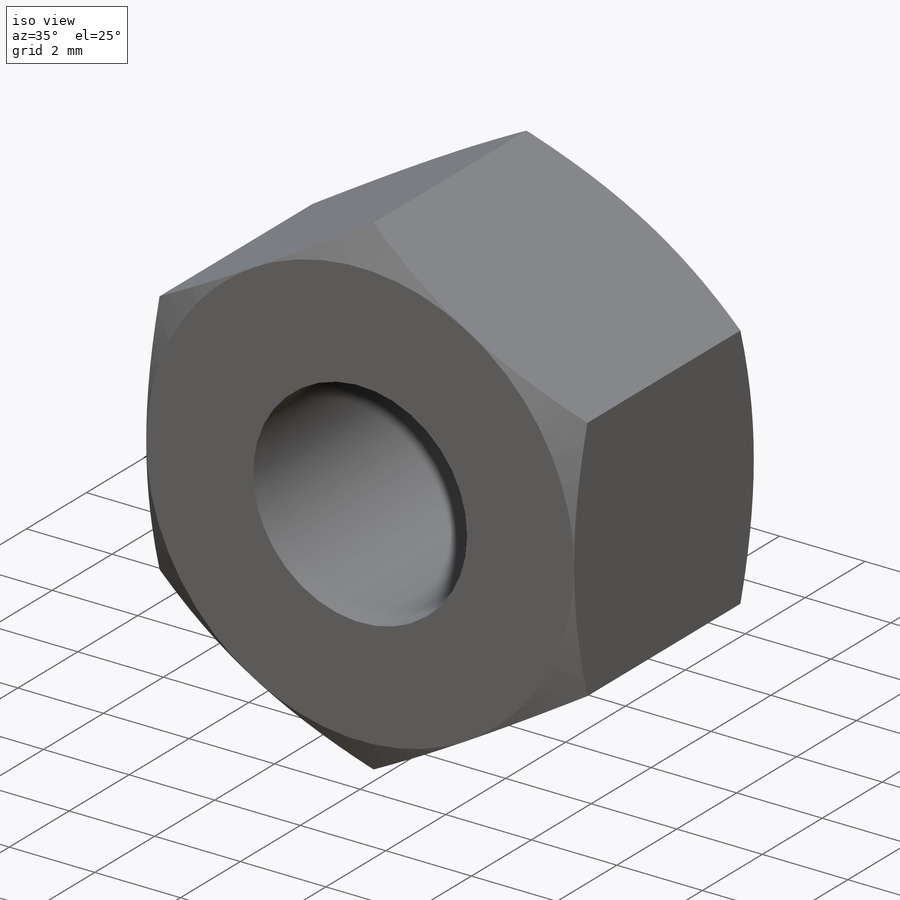
[diagram: iso view]
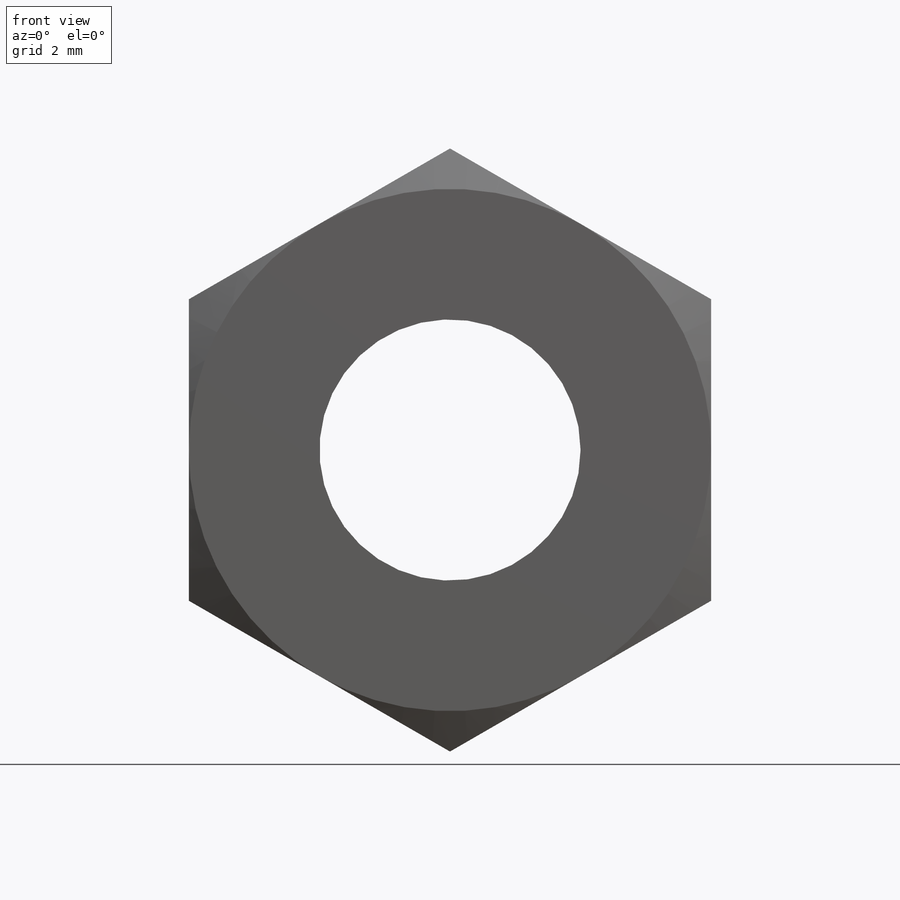
[diagram: front view]
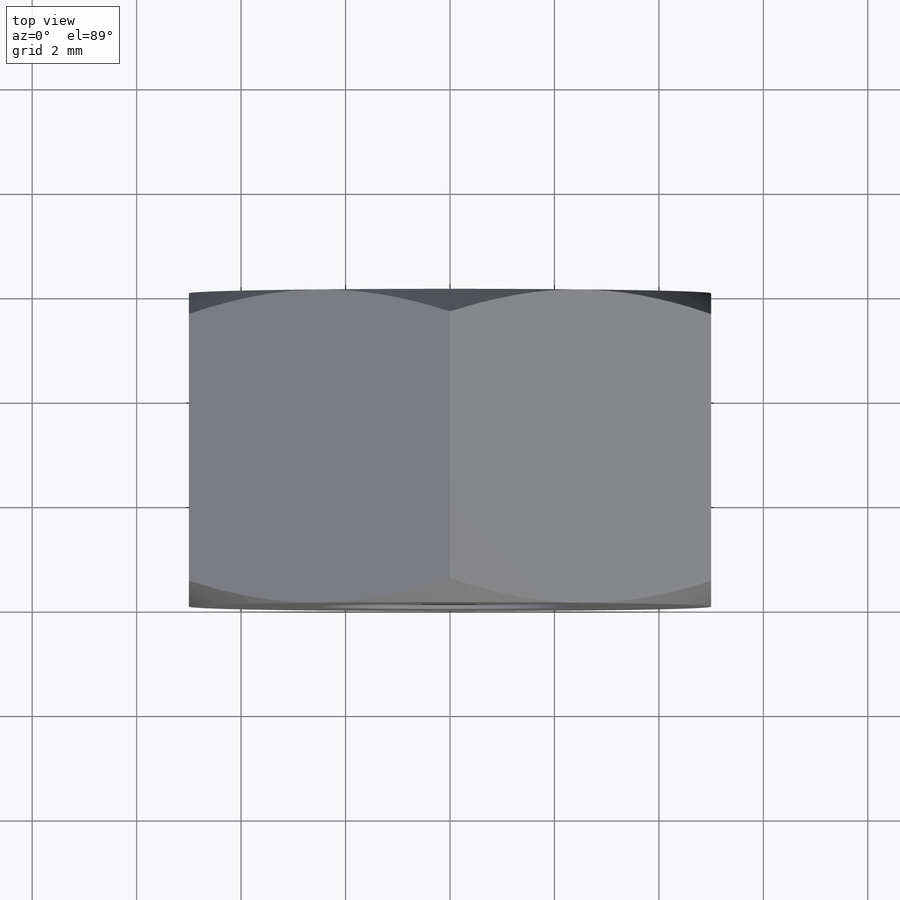
[diagram: top view]
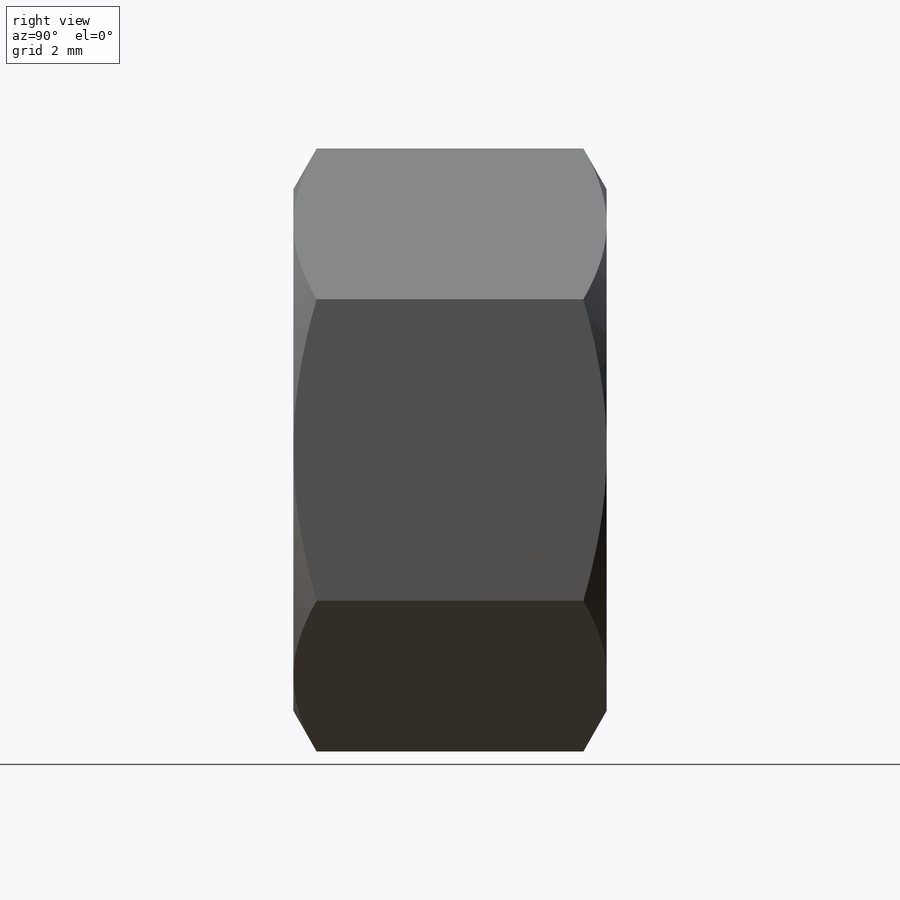
[diagram: right view]
SOLIDWORKS PART (.sldprt)
format: sldprt  version: not decoded by parser v0  size: 163,328 bytes
history: native  units: mm
features: plane x3, sketch x3, material x1, extrude x1, cut_extrude x1, cut_revolve x1 (+8 scaffold rows collapsed)
feature tree (18):
  scaffold x8  (default folders/planes/origin — collapsed)
  material  "Matériau <non spécifié>"
  plane  "Plan de face"
  plane  "Plan de dessus"
  plane  "Plan de droite"
  sketch  "Esquisse1"  dims[D1=10.0mm]
  extrude  "Boss.-Extru.1"  Depth=6mm
  sketch  "Esquisse2"  dims[D1=5.0mm]
  cut_extrude  "Enlèv. mat.-Extru.1"  [1 undecoded]
  sketch  "Esquisse4"  dims[c1.D1=1.0mm c1.D2=1.0mm c1.D3=2.75mm c2.D3=30.0deg c2.D2=1.0mm]
  cut_revolve  "Enlèvement de matière-Révolution8"  Angle=360deg
decode coverage: 5 of 6 modeling features carry decoded parameters
note: 1 parameter value undecoded
note: suppression state not decoded; provenance and decode notes live in map.json
